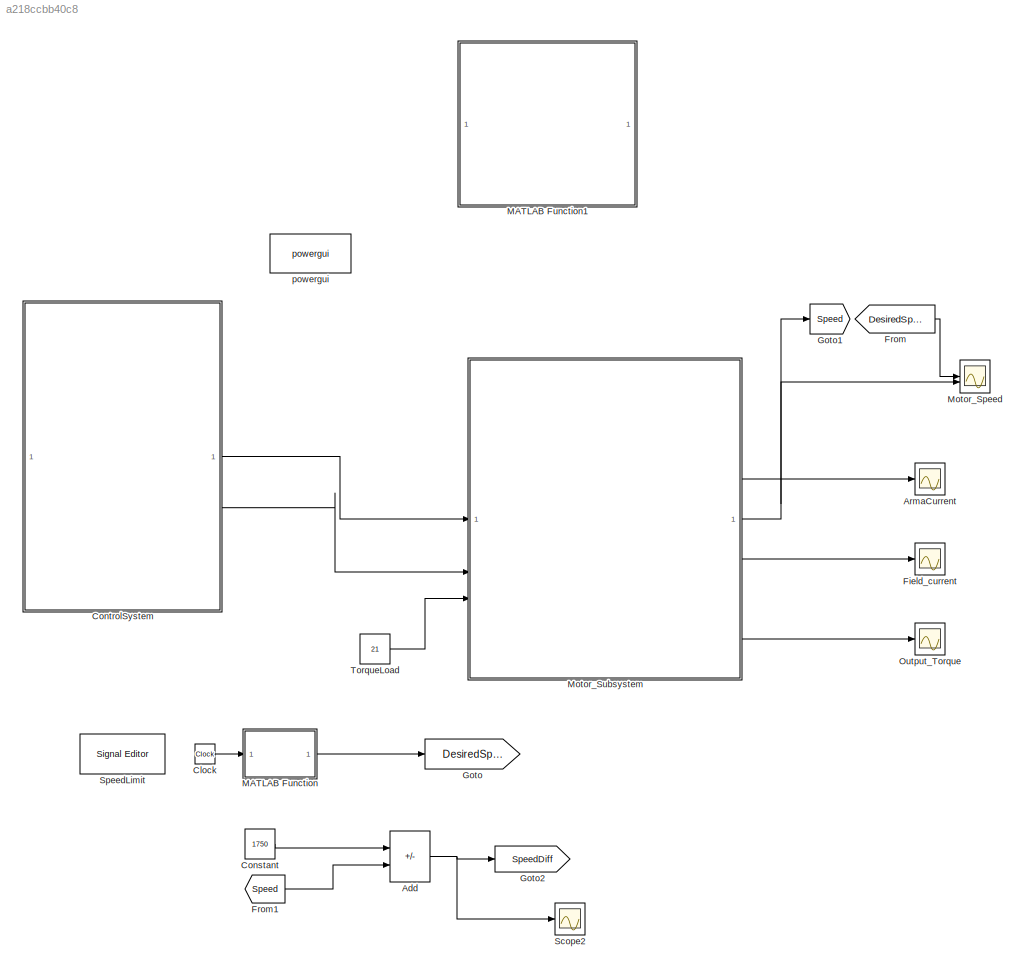
MODEL slx_a218ccbb40c8
KIND model
CONFIG AbsTol = auto
CONFIG EnableMultiTasking = off
CONFIG FixedStep = auto
CONFIG MaxStep = auto
CONFIG MinStep = auto
CONFIG RelTol = 1e-3
CONFIG SampleTimeConstraint = Unconstrained
CONFIG SolverName = ode15s
CONFIG StartTime = 0.0
CONFIG StopTime = 35
BLOCK [Sum] Add
  IconShape = rectangular
  Inputs = +-
BLOCK [Scope] ArmaCurrent
  Floating = off
  NumInputPorts = 1
  ScopeSpecificationString = Simulink.scopes.TimeScopeBlockCfg('CurrentConfiguration', extmgr.ConfigurationSet(extmgr.Configuration('Core','General UI',true),extmgr.Configuration('Core','Source UI',true),extmgr.Configuration('Sources','WiredSimulink',true,'DataLoggingVariableName','ScopeData1'),extmgr.Configuration('Visuals','Time Domain',true,'SerializedDisplays',{struct('MinYLimReal','-12.57008','MaxYLimReal','113.13075','Y...<+1475ch>
BLOCK [Clock] Clock
BLOCK [Constant] Constant
  Value = 1750
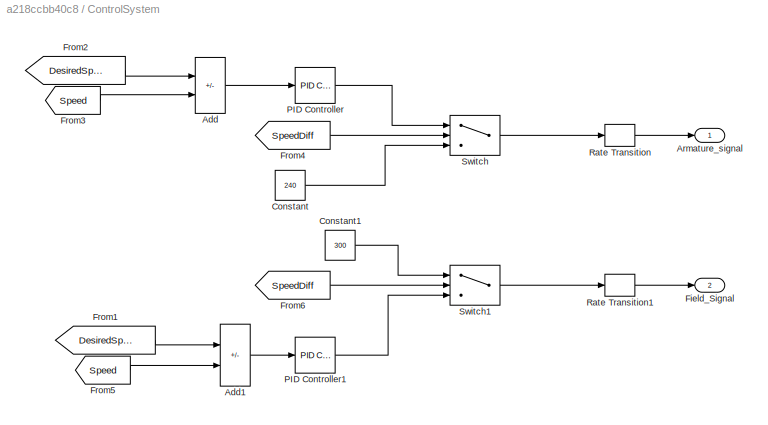
BLOCK [SubSystem] ControlSystem
BLOCK [Sum] ControlSystem/Add
  IconShape = rectangular
  Inputs = +-
BLOCK [Sum] ControlSystem/Add1
  IconShape = rectangular
  Inputs = +-
BLOCK [Outport] ControlSystem/Armature_signal
BLOCK [Constant] ControlSystem/Constant
  Value = 240
BLOCK [Constant] ControlSystem/Constant1
  Value = 300
BLOCK [Outport] ControlSystem/Field_Signal
  Port = 2
BLOCK [From] ControlSystem/From1
  GotoTag = DesiredSpeed
BLOCK [From] ControlSystem/From2
  GotoTag = DesiredSpeed
BLOCK [From] ControlSystem/From3
  GotoTag = Speed
BLOCK [From] ControlSystem/From4
  GotoTag = SpeedDiff
BLOCK [From] ControlSystem/From5
  GotoTag = Speed
BLOCK [From] ControlSystem/From6
  GotoTag = SpeedDiff
BLOCK [Reference] ControlSystem/PID Controller  REF=slpidlib/PID Controller
  LibrarySourceBlock = simulink/Continuous/PID Controller
  SourceBlock = slpidlib/PID Controller
  SourceType = PID 1dof
BLOCK [Reference] ControlSystem/PID Controller1  REF=slpidlib/PID Controller
  LibrarySourceBlock = simulink/Continuous/PID Controller
  SourceBlock = slpidlib/PID Controller
  SourceType = PID 1dof
BLOCK [RateTransition] ControlSystem/Rate Transition
BLOCK [RateTransition] ControlSystem/Rate Transition1
BLOCK [Switch] ControlSystem/Switch
  Criteria = u2 > Threshold
  InputSameDT = off
  SaturateOnIntegerOverflow = off
BLOCK [Switch] ControlSystem/Switch1
  Criteria = u2 > Threshold
  InputSameDT = off
  SaturateOnIntegerOverflow = off
BLOCK [Scope] Field_current
  Floating = off
  NumInputPorts = 1
  ScopeSpecificationString = Simulink.scopes.TimeScopeBlockCfg('CurrentConfiguration', extmgr.ConfigurationSet(extmgr.Configuration('Core','General UI',true),extmgr.Configuration('Core','Source UI',true),extmgr.Configuration('Sources','WiredSimulink',true,'DataLoggingVariableName','ScopeData2'),extmgr.Configuration('Visuals','Time Domain',true,'SerializedDisplays',{struct('MinYLimReal','-0.13336','MaxYLimReal','1.20021','YLab...<+1465ch>
BLOCK [From] From
  GotoTag = DesiredSpeed
BLOCK [From] From1
  GotoTag = Speed
BLOCK [Goto] Goto
  GotoTag = DesiredSpeed
BLOCK [Goto] Goto1
  GotoTag = Speed
BLOCK [Goto] Goto2
  GotoTag = SpeedDiff
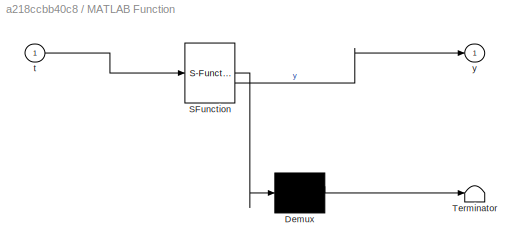
BLOCK [SubSystem] MATLAB Function
  ErrorFcn = Stateflow.Translate.translate
  PermitHierarchicalResolution = ExplicitOnly
  SFBlockType = MATLAB Function
  TreatAsAtomicUnit = on
BLOCK [Demux] MATLAB Function/ Demux 
  Outputs = 1
BLOCK [S-Function] MATLAB Function/ SFunction 
  EnableBusSupport = on
  FunctionName = sf_sfun
  PortCounts = [1 2]
  SFcnIsStateOwnerBlock = off
  SFunctionDeploymentMode = off
  Tag = Stateflow S-Function 2
BLOCK [Terminator] MATLAB Function/ Terminator 
BLOCK [Inport] MATLAB Function/t
BLOCK [Outport] MATLAB Function/y
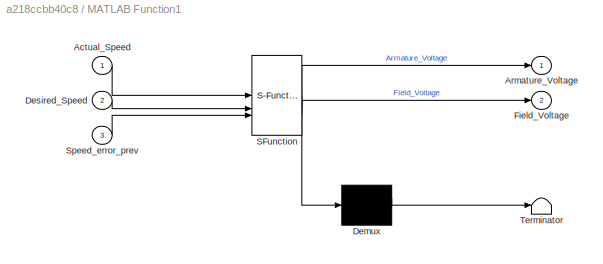
BLOCK [SubSystem] MATLAB Function1
  Commented = on
  ErrorFcn = Stateflow.Translate.translate
  PermitHierarchicalResolution = ExplicitOnly
  SFBlockType = MATLAB Function
  TreatAsAtomicUnit = on
BLOCK [Demux] MATLAB Function1/ Demux 
  Outputs = 1
BLOCK [S-Function] MATLAB Function1/ SFunction 
  EnableBusSupport = on
  FunctionName = sf_sfun
  PortCounts = [3 3]
  SFcnIsStateOwnerBlock = off
  SFunctionDeploymentMode = off
  Tag = Stateflow S-Function 1
BLOCK [Terminator] MATLAB Function1/ Terminator 
BLOCK [Inport] MATLAB Function1/Actual_Speed
BLOCK [Outport] MATLAB Function1/Armature_Voltage
BLOCK [Inport] MATLAB Function1/Desired_Speed
  Port = 2
BLOCK [Outport] MATLAB Function1/Field_Voltage
  Port = 2
BLOCK [Inport] MATLAB Function1/Speed_error_prev
  Port = 3
BLOCK [Scope] Motor_Speed
  Floating = off
  NumInputPorts = 2
  ScopeSpecificationString = Simulink.scopes.TimeScopeBlockCfg('CurrentConfiguration', extmgr.ConfigurationSet(extmgr.Configuration('Core','General UI',true),extmgr.Configuration('Core','Source UI',true),extmgr.Configuration('Sources','WiredSimulink',true),extmgr.Configuration('Visuals','Time Domain',true,'SerializedDisplays',{struct('MinYLimReal','-250.00000','MaxYLimReal','2250.00000','YLabelReal','','MinYLimMag',' 0.00000'...<+2178ch>
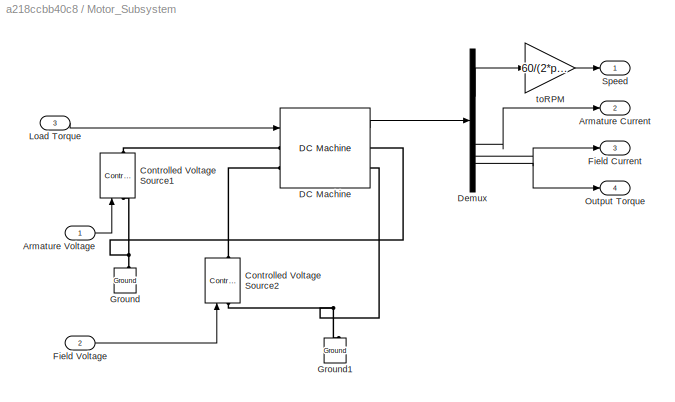
BLOCK [SubSystem] Motor_Subsystem
BLOCK [Outport] Motor_Subsystem/Armature Current
  Port = 2
BLOCK [Inport] Motor_Subsystem/Armature Voltage
BLOCK [Reference] Motor_Subsystem/Controlled Voltage Source1  REF=spsControlledVoltageSourceLib/Controlled Voltage Source
  LibrarySourceBlock = sps_lib/Sources/Controlled Voltage Source
  SourceBlock = spsControlledVoltageSourceLib/Controlled Voltage Source
  SourceType = Controlled Voltage Source
BLOCK [Reference] Motor_Subsystem/Controlled Voltage Source2  REF=spsControlledVoltageSourceLib/Controlled Voltage Source
  LibrarySourceBlock = sps_lib/Sources/Controlled Voltage Source
  SourceBlock = spsControlledVoltageSourceLib/Controlled Voltage Source
  SourceType = Controlled Voltage Source
BLOCK [Reference] Motor_Subsystem/DC Machine  REF=spsDCMachineLib/DC Machine
  LibrarySourceBlock = sps_lib/Electrical Machines/DC Machine
  SourceBlock = spsDCMachineLib/DC Machine
  SourceType = DC machine
BLOCK [Demux] Motor_Subsystem/Demux
BLOCK [Outport] Motor_Subsystem/Field Current
  Port = 3
BLOCK [Inport] Motor_Subsystem/Field Voltage
  Port = 2
BLOCK [Reference] Motor_Subsystem/Ground  REF=spsGroundLib/Ground
  LibrarySourceBlock = sps_lib/Utilities/Ground
  NameLocation = right
  SourceBlock = spsGroundLib/Ground
  SourceType = Ground
BLOCK [Reference] Motor_Subsystem/Ground1  REF=spsGroundLib/Ground
  LibrarySourceBlock = sps_lib/Utilities/Ground
  NameLocation = right
  SourceBlock = spsGroundLib/Ground
  SourceType = Ground
BLOCK [Inport] Motor_Subsystem/Load Torque
  Port = 3
BLOCK [Outport] Motor_Subsystem/Output Torque
  Port = 4
BLOCK [Outport] Motor_Subsystem/Speed
BLOCK [Gain] Motor_Subsystem/toRPM
  Gain = 60/(2*pi)
BLOCK [Scope] Output_Torque
  Floating = off
  NumInputPorts = 1
  ScopeSpecificationString = Simulink.scopes.TimeScopeBlockCfg('CurrentConfiguration', extmgr.ConfigurationSet(extmgr.Configuration('Core','General UI',true),extmgr.Configuration('Core','Source UI',true),extmgr.Configuration('Sources','WiredSimulink',true,'DataLoggingVariableName','ScopeData3'),extmgr.Configuration('Visuals','Time Domain',true,'SerializedDisplays',{struct('MinYLimReal','-6.70086','MaxYLimReal','60.30778','YLa...<+1469ch>
BLOCK [Scope] Scope2
  Floating = off
  NumInputPorts = 1
  ScopeSpecificationString = Simulink.scopes.TimeScopeBlockCfg('CurrentConfiguration', extmgr.ConfigurationSet(extmgr.Configuration('Core','General UI',true),extmgr.Configuration('Core','Source UI',true),extmgr.Configuration('Sources','WiredSimulink',true,'DataLoggingVariableName','ScopeData6'),extmgr.Configuration('Visuals','Time Domain',true,'SerializedDisplays',{struct('MinYLimReal','-1032.1737','MaxYLimReal','2854.27582',...<+1471ch>
BLOCK [Reference] SpeedLimit  REF=SignalEditorBlockLib/Signal Editor
  Commented = on
  LibrarySourceBlock = simulink/Sources/Signal Editor
  SourceBlock = SignalEditorBlockLib/Signal Editor
  SourceType = SignalEditor
  UserDataPersistent = on
BLOCK [Constant] TorqueLoad
  Value = 21
BLOCK [Reference] powergui  REF=sps_lib/powergui
  LibrarySourceBlock = sps_lib/powergui
  Priority = 1
  SourceBlock = sps_lib/powergui
  SourceType = PSB option menu block
NET Add:1 -> Goto2:1, Scope2:1
LINE Clock:1 -> MATLAB Function:1
LINE Constant:1 -> Add:1
LINE ControlSystem/Add1:1 -> ControlSystem/PID Controller1:1
LINE ControlSystem/Add:1 -> ControlSystem/PID Controller:1
LINE ControlSystem/Constant1:1 -> ControlSystem/Switch1:1
LINE ControlSystem/Constant:1 -> ControlSystem/Switch:3
LINE ControlSystem/From1:1 -> ControlSystem/Add1:1
LINE ControlSystem/From2:1 -> ControlSystem/Add:1
LINE ControlSystem/From3:1 -> ControlSystem/Add:2
LINE ControlSystem/From4:1 -> ControlSystem/Switch:2
LINE ControlSystem/From5:1 -> ControlSystem/Add1:2
LINE ControlSystem/From6:1 -> ControlSystem/Switch1:2
LINE ControlSystem/PID Controller1:1 -> ControlSystem/Switch1:3
LINE ControlSystem/PID Controller:1 -> ControlSystem/Switch:1
LINE ControlSystem/Rate Transition1:1 -> ControlSystem/Field_Signal:1
LINE ControlSystem/Rate Transition:1 -> ControlSystem/Armature_signal:1
LINE ControlSystem/Switch1:1 -> ControlSystem/Rate Transition1:1
LINE ControlSystem/Switch:1 -> ControlSystem/Rate Transition:1
LINE ControlSystem:1 -> Motor_Subsystem:1
LINE ControlSystem:2 -> Motor_Subsystem:2
LINE From1:1 -> Add:2
LINE From:1 -> Motor_Speed:1
LINE MATLAB Function:1 -> Goto:1
LINE Motor_Subsystem/Armature Voltage:1 -> Motor_Subsystem/Controlled Voltage Source1:1
LINE Motor_Subsystem/DC Machine:1 -> Motor_Subsystem/Demux:1
LINE Motor_Subsystem/Demux:1 -> Motor_Subsystem/toRPM:1
LINE Motor_Subsystem/Demux:2 -> Motor_Subsystem/Armature Current:1
LINE Motor_Subsystem/Demux:3 -> Motor_Subsystem/Field Current:1
LINE Motor_Subsystem/Demux:4 -> Motor_Subsystem/Output Torque:1
LINE Motor_Subsystem/Field Voltage:1 -> Motor_Subsystem/Controlled Voltage Source2:1
LINE Motor_Subsystem/Load Torque:1 -> Motor_Subsystem/DC Machine:1
LINE Motor_Subsystem/toRPM:1 -> Motor_Subsystem/Speed:1
NET Motor_Subsystem:1 -> Goto1:1, Motor_Speed:2
LINE Motor_Subsystem:2 -> ArmaCurrent:1
LINE Motor_Subsystem:3 -> Field_current:1
LINE Motor_Subsystem:4 -> Output_Torque:1
LINE TorqueLoad:1 -> Motor_Subsystem:3
PNET net1: Motor_Subsystem/Controlled Voltage Source1:LConn1 -- Motor_Subsystem/DC Machine:RConn1 -- Motor_Subsystem/Ground:LConn1
PLINE Motor_Subsystem/Controlled Voltage Source1:RConn1 -- Motor_Subsystem/DC Machine:LConn1
PNET net2: Motor_Subsystem/Controlled Voltage Source2:LConn1 -- Motor_Subsystem/DC Machine:RConn2 -- Motor_Subsystem/Ground1:LConn1
PLINE Motor_Subsystem/Controlled Voltage Source2:RConn1 -- Motor_Subsystem/DC Machine:LConn2
note: NET lines group one-source signal fan-out (src -> all destinations, sorted); 1:1 wires keep LINE; PNET lines group multi-terminal physical nets as a canonical sorted terminal list (undirected conserving connections); 2-terminal nets keep the pairwise PLINE form
CHART MATLAB Function1 states=1 transitions=1
  STATE_LABEL 'eML_blk_kernel()'
  STATE_LABEL 'SCRIPT:\nfunction [Armature_Voltage, Field_Voltage] = fcn(Actual_Speed, Desired_Speed, Speed_error_prev)\n\n    Rated_Speed = 1750; % rpm\n    Rated_Armature_Voltage = 240; \n    Rated_Field_Voltage = 300; \n  \n    Speed_difference = Rated_Speed - Actual_Speed;\n    Speed_error = Actual_Speed - Desired_Speed;\n    \n    Kp = 0.1;  \n    Ki = 0.01; \n    Kd = 0.001; \n    \n   \n    PID_output = Kp * Speed_error...<+535ch>'
CHART MATLAB Function states=1 transitions=1
  STATE_LABEL 'eML_blk_kernel()'
  STATE_LABEL 'SCRIPT:\nfunction y = signalGen(t)\n% Custom signal generator\n\nif t < 0\n    y = 0;\nelseif t >= 0 && t < 15\n    y = (2000 / 15) * t;\nelseif t >= 15 && t < 20\n    y = 2000;\nelseif t >= 20 && t <= 35\n    y = 2000 - ((2000 / 15) * (t - 20));\nelse\n    y = 0;\nend\n\n'
CHART  states=0 transitions=0
CHART  states=0 transitions=0
